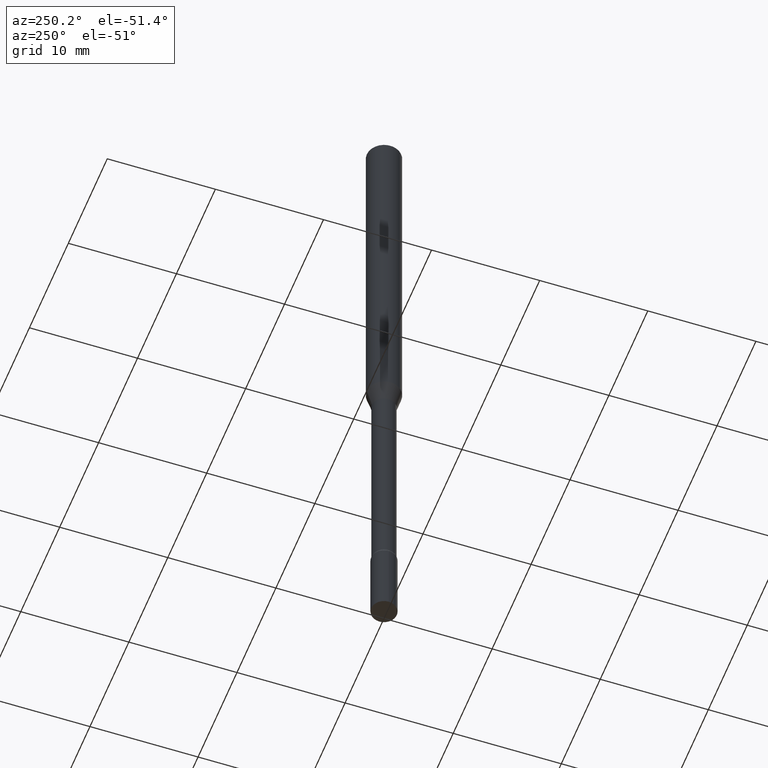
[diagram: clean part render]
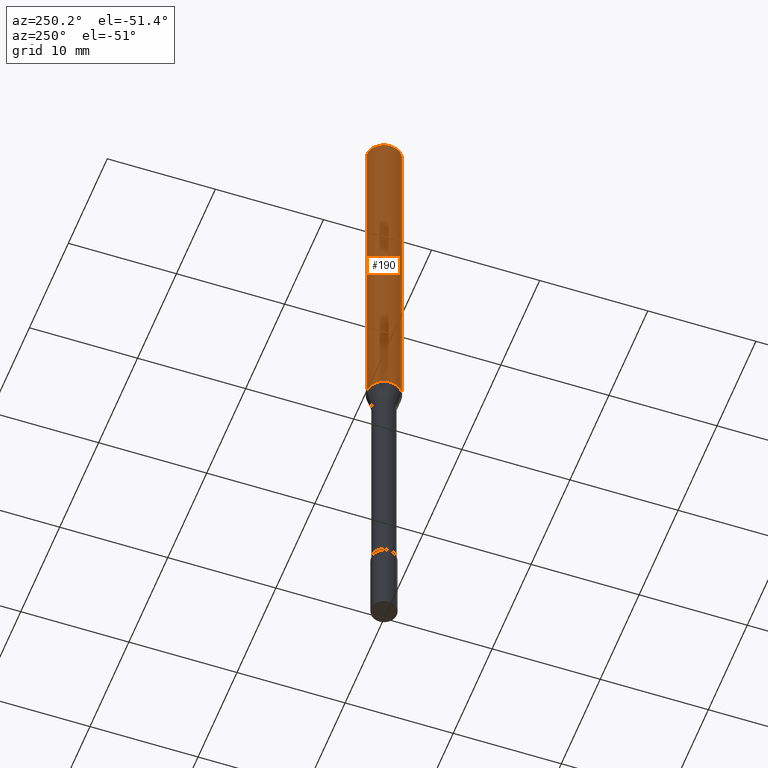
[diagram: same view with one face highlighted and labeled with its STEP entity id]
A machine part, auxiliary view. The second image highlights one B-rep face of the part: STEP entity #190.
In plain terms, the highlighted cylindrical surface (edge-blend (fillet) strip) has radius 1.5875 mm, axis along (-0, 0, 1).
Its self-contained STEP definition (entity closure, byte-faithful):
#11 = CARTESIAN_POINT ( 'NONE',  ( 4.440892098500625669E-16, 0.06250000000000000000, -2.182207074790585235E-16 ) ) ;
#44 = AXIS2_PLACEMENT_3D ( 'NONE', #217, #459, #174 ) ;
#56 = VECTOR ( 'NONE', #492, 39.37007874015748143 ) ;
#85 = DIRECTION ( 'NONE',  ( -6.982962677686265922E-15, -1.000000000000000000, 3.491531319664936376E-15 ) ) ;
#128 = EDGE_LOOP ( 'NONE', ( #411, #416, #287, #377 ) ) ;
#130 = LINE ( 'NONE', #11, #56 ) ;
#131 = CARTESIAN_POINT ( 'NONE',  ( -4.364351673553912750E-16, -0.06250000000000005551, -0.01499999999999981209 ) ) ;
#135 = CARTESIAN_POINT ( 'NONE',  ( 3.668150857145737222E-31, -5.237296979497415338E-17, -0.01500000000000003067 ) ) ;
#143 = CIRCLE ( 'NONE', #434, 0.06250000000000000000 ) ;
#145 = VECTOR ( 'NONE', #248, 39.37007874015748143 ) ;
#164 = LINE ( 'NONE', #295, #145 ) ;
#173 = DIRECTION ( 'NONE',  ( -2.445433904763820190E-29, 3.491531319664936376E-15, 1.000000000000000000 ) ) ;
#174 = DIRECTION ( 'NONE',  ( -6.982962677686265922E-15, -1.000000000000000000, 4.370956789862821150E-15 ) ) ;
#190 = ADVANCED_FACE ( 'NONE', ( #446 ), #493, .T. ) ;
#198 = VERTEX_POINT ( 'NONE', #131 ) ;
#214 = DIRECTION ( 'NONE',  ( -6.982962677686265922E-15, -1.000000000000000000, 3.483106191921935554E-15 ) ) ;
#217 = CARTESIAN_POINT ( 'NONE',  ( 3.212902632905481440E-29, -4.587304587529570230E-15, -1.313837444817705258 ) ) ;
#248 = DIRECTION ( 'NONE',  ( -2.445433904763820470E-29, 3.491531319664936376E-15, 1.000000000000000000 ) ) ;
#256 = EDGE_CURVE ( 'NONE', #473, #198, #143, .T. ) ;
#274 = VERTEX_POINT ( 'NONE', #338 ) ;
#287 = ORIENTED_EDGE ( 'NONE', *, *, #415, .T. ) ;
#295 = CARTESIAN_POINT ( 'NONE',  ( -4.364351673553916201E-16, -0.06250000000000000000, 2.182207074790585235E-16 ) ) ;
#325 = AXIS2_PLACEMENT_3D ( 'NONE', #384, #342, #85 ) ;
#338 = CARTESIAN_POINT ( 'NONE',  ( -4.364351673553592768E-16, -0.06250000000000455191, -1.313837444817705036 ) ) ;
#342 = DIRECTION ( 'NONE',  ( -2.445433904763820190E-29, 3.491531319664936376E-15, 1.000000000000000000 ) ) ;
#368 = CARTESIAN_POINT ( 'NONE',  ( 4.440892098500948609E-16, 0.06249999999999544809, -1.313837444817705702 ) ) ;
#377 = ORIENTED_EDGE ( 'NONE', *, *, #256, .F. ) ;
#382 = CIRCLE ( 'NONE', #44, 0.06250000000000000000 ) ;
#384 = CARTESIAN_POINT ( 'NONE',  ( 0.000000000000000000, 0.000000000000000000, 0.000000000000000000 ) ) ;
#399 = EDGE_CURVE ( 'NONE', #400, #473, #130, .T. ) ;
#400 = VERTEX_POINT ( 'NONE', #368 ) ;
#411 = ORIENTED_EDGE ( 'NONE', *, *, #399, .F. ) ;
#415 = EDGE_CURVE ( 'NONE', #274, #198, #164, .T. ) ;
#416 = ORIENTED_EDGE ( 'NONE', *, *, #479, .T. ) ;
#434 = AXIS2_PLACEMENT_3D ( 'NONE', #135, #173, #214 ) ;
#446 = FACE_OUTER_BOUND ( 'NONE', #128, .T. ) ;
#459 = DIRECTION ( 'NONE',  ( -2.445433904763820190E-29, 3.491531319664936376E-15, 1.000000000000000000 ) ) ;
#461 = CARTESIAN_POINT ( 'NONE',  ( 4.440892098500949595E-16, 0.06249999999999995837, -0.01500000000000024751 ) ) ;
#473 = VERTEX_POINT ( 'NONE', #461 ) ;
#479 = EDGE_CURVE ( 'NONE', #400, #274, #382, .T. ) ;
#492 = DIRECTION ( 'NONE',  ( -2.445433904763820470E-29, 3.491531319664936376E-15, 1.000000000000000000 ) ) ;
#493 = CYLINDRICAL_SURFACE ( 'NONE', #325, 0.06250000000000000000 ) ;